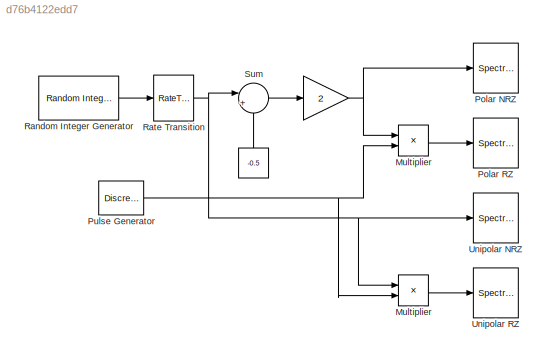
MODEL slx_d76b4122edd7
KIND model
BLOCK [Constant]  
  Value = -0.5
BLOCK [Gain]    
  Gain = 2
  OutDataTypeStr = Inherit: Inherit via internal rule
  ParamDataTypeStr = Inherit: Inherit via internal rule
  SaturateOnIntegerOverflow = off
BLOCK [RateTransition]  Rate Transition
  OutPortSampleTime = 2e-5
BLOCK [Product] Multiplier
  InputSameDT = off
  OutDataTypeStr = Inherit: Inherit via internal rule
  Ports = [2, 1]
  SaturateOnIntegerOverflow = off
BLOCK [Product] Multiplier 
  InputSameDT = off
  OutDataTypeStr = Inherit: Inherit via internal rule
  Ports = [2, 1]
  SaturateOnIntegerOverflow = off
BLOCK [SpectrumAnalyzer] Polar NRZ
  Ports = [1]
  ScopeSpecificationString = spbscopes.SpectrumAnalyzerBlockCfg('CurrentConfiguration', extmgr.ConfigurationSet(extmgr.Configuration('Core','General UI',true,'ShowNewAction',false,'ShowLoadConfigSet',false,'ShowSaveConfigSet',false,'ShowConfiguration',false,'ShowCloseAll',false,'DisplayFullSourceName',false,'MessageLogAutoOpenMode','for warn/fail messages','MessageLogDialogPosition',[20 520 450 500],'ShowMainToolbar',true,'Sh...<+8189ch>  <repeated x3 — deduplicated; at blocks: Polar NRZ, Polar RZ, Unipolar NRZ>
BLOCK [SpectrumAnalyzer] Polar RZ
  Ports = [1]
BLOCK [DiscretePulseGenerator] Pulse Generator
  Period = 50
  Ports = [0, 1]
  PulseWidth = 25
  SampleTime = 2e-5
BLOCK [Reference] Random Integer Generator  REF=commrandsrc2/Random Integer
Generator
  Ports = [0, 1]
  SourceBlock = commrandsrc2/Random Integer\nGenerator
  SourceType = Random Integer Generator
  Ts = 1e-3
  frameBased = off
  mul = 2
  orient = off
  outDataType = double
  sampPerFrame = 1
  seed = randseed
BLOCK [Sum] Sum
  IconShape = round
  InputSameDT = off
  Inputs = |++
  OutDataTypeStr = Inherit: Inherit via internal rule
  Ports = [2, 1]
  SaturateOnIntegerOverflow = off
BLOCK [SpectrumAnalyzer] Unipolar NRZ
  Ports = [1]
BLOCK [SpectrumAnalyzer] Unipolar RZ
  Ports = [1]
  ScopeSpecificationString = spbscopes.SpectrumAnalyzerBlockCfg('CurrentConfiguration', extmgr.ConfigurationSet(extmgr.Configuration('Core','General UI',true,'FigureColor',[0.313725490196078 0.313725490196078 0.313725490196078]),extmgr.Configuration('Core','Source UI',true),extmgr.Configuration('Sources','WiredSimulink',true),extmgr.Configuration('Visuals','Spectrum',true,'AxesProperties',struct('Color',[0 0 0],'XColor',[0.68...<+7051ch>
NET    :1 -> Multiplier :1, Polar NRZ:1
LINE  :1 -> Sum:2
NET  Rate Transition:1 -> Multiplier:1, Sum:1, Unipolar NRZ:1
LINE Multiplier :1 -> Polar RZ:1
LINE Multiplier:1 -> Unipolar RZ:1
NET Pulse Generator:1 -> Multiplier :2, Multiplier:2
LINE Random Integer Generator:1 ->  Rate Transition:1
LINE Sum:1 ->    :1
note: NET lines group one-source signal fan-out (src -> all destinations, sorted); 1:1 wires keep LINE
